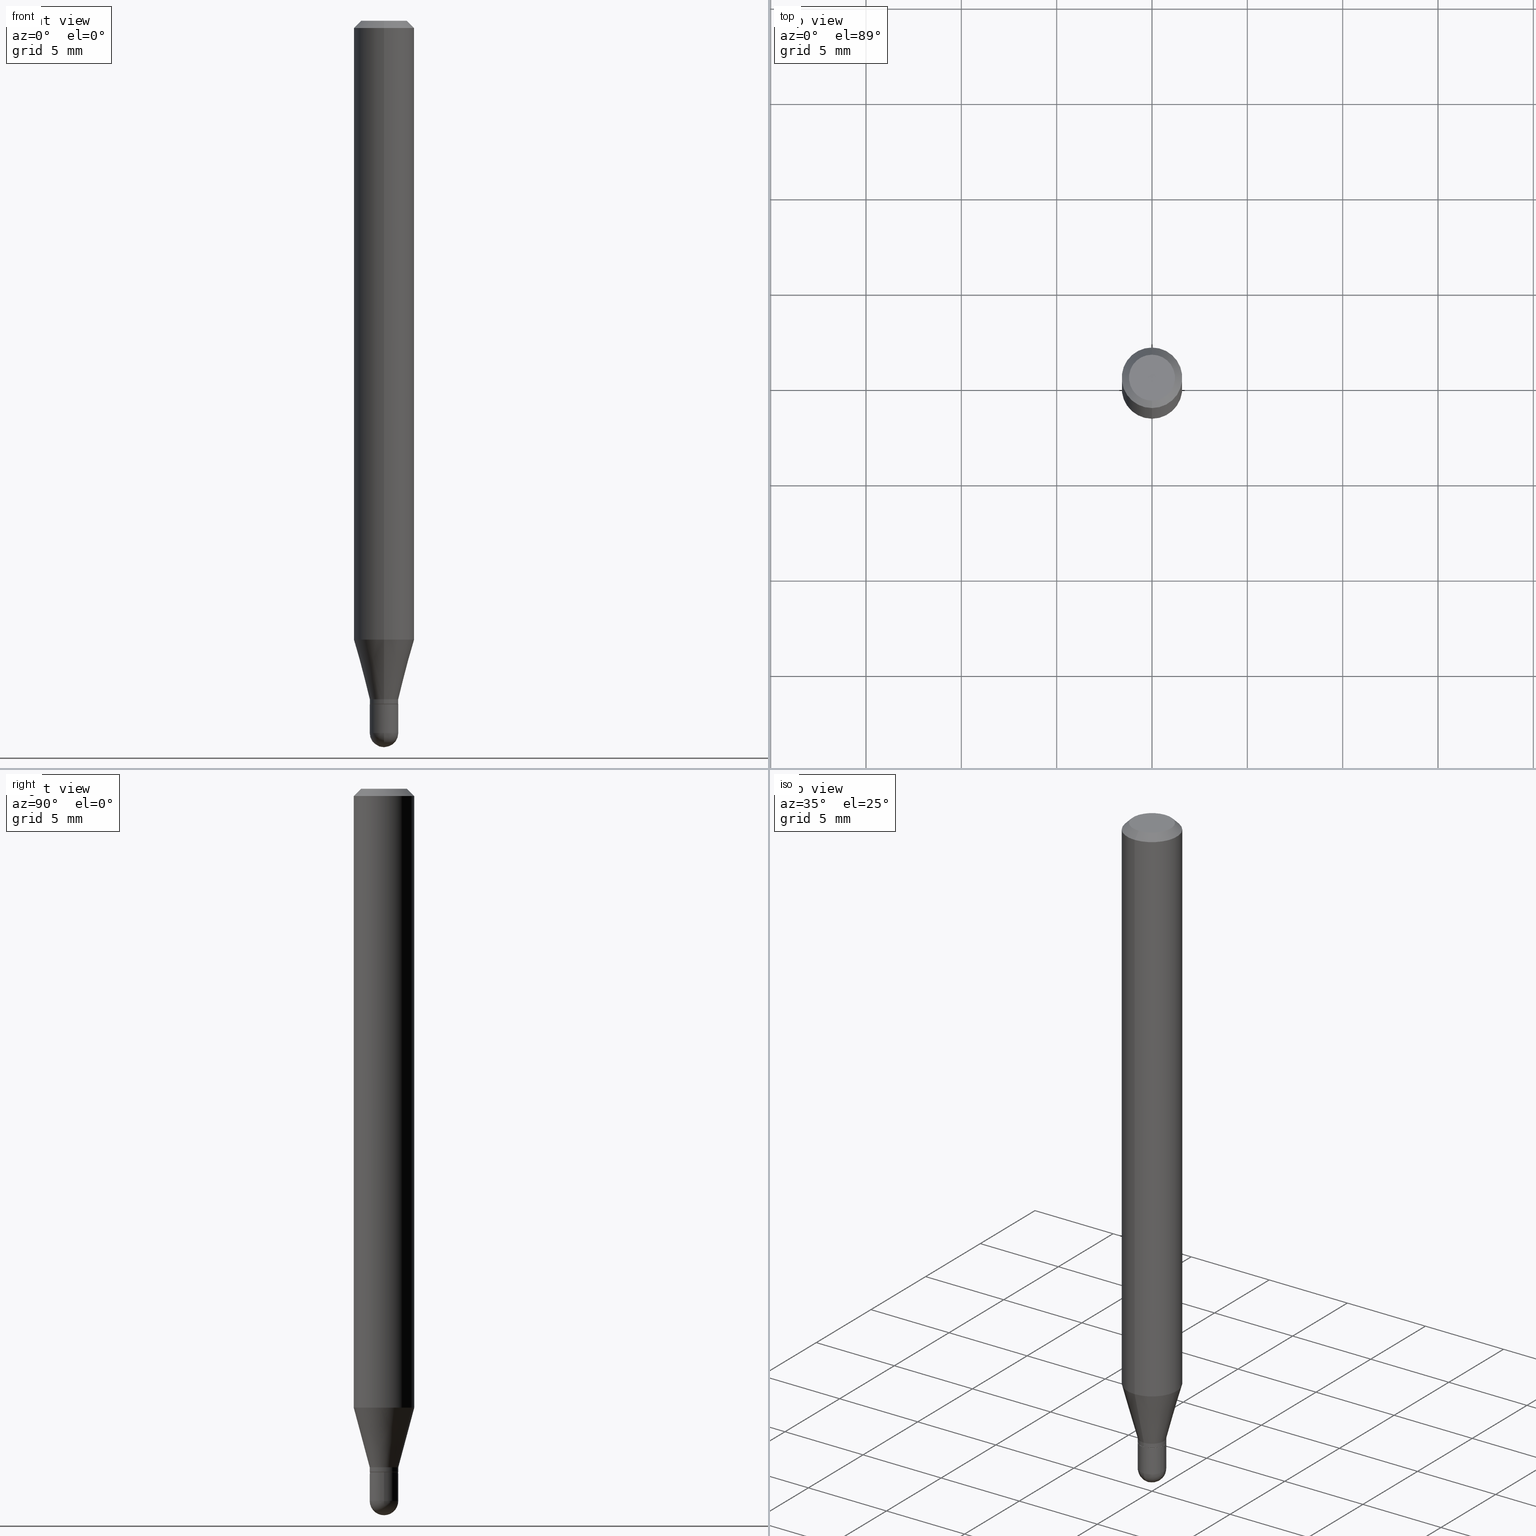
[diagram: canonical four-view strip — front | top / right | iso, engineering-drawing reading convention]
A machine part, canonical four-view strip (front | top / right | iso — engineering-drawing reading convention). The complete STEP part file that produces these views, byte-faithful:
ISO-10303-21;
HEADER;
FILE_DESCRIPTION (( 'STEP AP203' ),
    '1' );
FILE_NAME ('00723.STEP',
    '2024-03-07T18:07:25',
    ( '' ),
    ( '' ),
    'SwSTEP 2.0',
    'SolidWorks 2023',
    '' );
FILE_SCHEMA (( 'CONFIG_CONTROL_DESIGN' ));
ENDSEC;

DATA;
#1 = VERTEX_POINT ( 'NONE', #67 ) ;
#2 = EDGE_CURVE ( 'NONE', #483, #374, #115, .T. ) ;
#3 = CC_DESIGN_PERSON_AND_ORGANIZATION_ASSIGNMENT ( #64, #68, ( #231 ) ) ;
#4 = CARTESIAN_POINT ( 'NONE',  ( 4.440892098500935790E-16, 0.06249999999999551054, -1.277842323350228959 ) ) ;
#5 = EDGE_LOOP ( 'NONE', ( #18, #276, #55, #388 ) ) ;
#6 = CIRCLE ( 'NONE', #128, 0.02949999999999992212 ) ;
#7 =( GEOMETRIC_REPRESENTATION_CONTEXT ( 3 ) GLOBAL_UNCERTAINTY_ASSIGNED_CONTEXT ( ( #241 ) ) GLOBAL_UNIT_ASSIGNED_CONTEXT ( ( #370, #222, #456 ) ) REPRESENTATION_CONTEXT ( 'NONE', 'WORKASPACE' ) );
#8 = FACE_OUTER_BOUND ( 'NONE', #240, .T. ) ;
#9 = DIRECTION ( 'NONE',  ( -2.445468806185136597E-29, 3.491481338843145583E-15, 1.000000000000000000 ) ) ;
#10 = VERTEX_POINT ( 'NONE', #333 ) ;
#11 = CARTESIAN_POINT ( 'NONE',  ( -4.364351673553916201E-16, -0.06250000000000000000, 2.182174235883125981E-16 ) ) ;
#12 = LINE ( 'NONE', #77, #405 ) ;
#13 = CC_DESIGN_PERSON_AND_ORGANIZATION_ASSIGNMENT ( #200, #338, ( #228 ) ) ;
#14 = CARTESIAN_POINT ( 'NONE',  ( -2.059973989917119804E-16, -0.02950000000000509159, -1.401000000000000245 ) ) ;
#15 = CARTESIAN_POINT ( 'NONE',  ( 3.124925826572324865E-29, -4.461559352857447454E-15, -1.277842323350228737 ) ) ;
#16 = CARTESIAN_POINT ( 'NONE',  ( 3.450559009294189822E-29, -4.926476554929744998E-15, -1.411000000000000032 ) ) ;
#17 = APPROVAL_PERSON_ORGANIZATION ( #150, #263, #308 ) ;
#18 = ORIENTED_EDGE ( 'NONE', *, *, #249, .T. ) ;
#19 = CARTESIAN_POINT ( 'NONE',  ( 3.840629472727447874E-16, 0.04749999999999999362, -1.747056831868805136E-16 ) ) ;
#20 = CYLINDRICAL_SURFACE ( 'NONE', #431, 0.02950000000000006437 ) ;
#21 = FACE_OUTER_BOUND ( 'NONE', #186, .T. ) ;
#22 = EDGE_CURVE ( 'NONE', #202, #396, #174, .T. ) ;
#23 =( LENGTH_UNIT ( ) NAMED_UNIT ( * ) SI_UNIT ( $, .METRE. ) );
#24 = LINE ( 'NONE', #63, #136 ) ;
#25 = APPROVAL_STATUS ( 'not_yet_approved' ) ;
#26 = ORIENTED_EDGE ( 'NONE', *, *, #70, .T. ) ;
#27 = FACE_OUTER_BOUND ( 'NONE', #305, .T. ) ;
#28 = EDGE_CURVE ( 'NONE', #345, #294, #340, .T. ) ;
#29 = AXIS2_PLACEMENT_3D ( 'NONE', #41, #320, #393 ) ;
#30 = DIRECTION ( 'NONE',  ( -6.982962677686265133E-15, -1.000000000000000000, 3.491478777413001176E-15 ) ) ;
#31 = VECTOR ( 'NONE', #225, 39.37007874015748143 ) ;
#32 = ORIENTED_EDGE ( 'NONE', *, *, #480, .F. ) ;
#33 = DIRECTION ( 'NONE',  ( -2.445470594822246081E-29, 3.491478777413001570E-15, 1.000000000000000000 ) ) ;
#34 = ORIENTED_EDGE ( 'NONE', *, *, #166, .T. ) ;
#35 = CARTESIAN_POINT ( 'NONE',  ( 3.668205892233371399E-31, -5.237218166119505609E-17, -0.01500000000000000812 ) ) ;
#36 = EDGE_CURVE ( 'NONE', #294, #345, #90, .T. ) ;
#37 = VERTEX_POINT ( 'NONE', #261 ) ;
#38 = ORIENTED_EDGE ( 'NONE', *, *, #360, .T. ) ;
#39 = DIRECTION ( 'NONE',  ( 1.000000000000000000, -6.982962677686250144E-15, 0.000000000000000000 ) ) ;
#40 = VERTEX_POINT ( 'NONE', #301 ) ;
#41 = CARTESIAN_POINT ( 'NONE',  ( 3.426104303345967375E-29, -4.891561767155615897E-15, -1.401000000000000245 ) ) ;
#42 = CARTESIAN_POINT ( 'NONE',  ( -2.025059176528671736E-16, -0.02900000000000492462, -1.411000000000000032 ) ) ;
#43 = AXIS2_PLACEMENT_3D ( 'NONE', #291, #216, #468 ) ;
#44 = ORIENTED_EDGE ( 'NONE', *, *, #500, .F. ) ;
#45 = LINE ( 'NONE', #208, #262 ) ;
#46 = APPROVAL ( #268, 'UNSPECIFIED' ) ;
#47 = CARTESIAN_POINT ( 'NONE',  ( 0.000000000000000000, 0.000000000000000000, 0.000000000000000000 ) ) ;
#48 = DIRECTION ( 'NONE',  ( -2.445470594822246362E-29, 3.491478777413001965E-15, 1.000000000000000000 ) ) ;
#49 = DIRECTION ( 'NONE',  ( -2.445470594822246081E-29, 3.491478777413001570E-15, 1.000000000000000000 ) ) ;
#50 = CARTESIAN_POINT ( 'NONE',  ( 3.668205892233371399E-31, -5.237218166119505609E-17, -0.01500000000000000812 ) ) ;
#51 = ADVANCED_FACE ( 'NONE', ( #295 ), #303, .T. ) ;
#52 = AXIS2_PLACEMENT_3D ( 'NONE', #69, #226, #201 ) ;
#53 = ORGANIZATION ( 'UNSPECIFIED', 'UNSPECIFIED', '' ) ;
#54 = DIRECTION ( 'NONE',  ( -2.445470594822246081E-29, 3.491478777413001570E-15, 1.000000000000000000 ) ) ;
#55 = ORIENTED_EDGE ( 'NONE', *, *, #36, .F. ) ;
#56 = DIRECTION ( 'NONE',  ( -6.982962677686265922E-15, -1.000000000000000000, 3.491478777413001570E-15 ) ) ;
#57 = ORIENTED_EDGE ( 'NONE', *, *, #197, .F. ) ;
#58 = CARTESIAN_POINT ( 'NONE',  ( 3.426104303345967375E-29, -4.891561767155615897E-15, -1.401000000000000245 ) ) ;
#59 = CARTESIAN_POINT ( 'NONE',  ( 3.450559009294189822E-29, -4.926476554929744998E-15, -1.411000000000000032 ) ) ;
#60 = ADVANCED_BREP_SHAPE_REPRESENTATION ( '00723', ( #146, #321, #351 ), #7 ) ;
#61 = AXIS2_PLACEMENT_3D ( 'NONE', #379, #195, #152 ) ;
#62 = ADVANCED_FACE ( 'NONE', ( #461 ), #148, .F. ) ;
#63 = CARTESIAN_POINT ( 'NONE',  ( 0.02950000000000000192, -2.059973989917448660E-16, 1.438472148859801150E-30 ) ) ;
#64 = PERSON_AND_ORGANIZATION ( #420, #53 ) ;
#65 = FACE_OUTER_BOUND ( 'NONE', #165, .T. ) ;
#66 = LINE ( 'NONE', #72, #253 ) ;
#67 = CARTESIAN_POINT ( 'NONE',  ( -0.02950000000000000192, -4.820741631889032374E-15, -1.470500000000000140 ) ) ;
#68 = PERSON_AND_ORGANIZATION_ROLE ( 'creator' ) ;
#69 = CARTESIAN_POINT ( 'NONE',  ( 3.450559009294189822E-29, -4.926476554929744998E-15, -1.411000000000000032 ) ) ;
#70 = EDGE_CURVE ( 'NONE', #483, #40, #358, .T. ) ;
#71 = AXIS2_PLACEMENT_3D ( 'NONE', #103, #403, #113 ) ;
#72 = CARTESIAN_POINT ( 'NONE',  ( -2.059973989917452604E-16, -0.02950000000000006437, 1.029986239336837582E-16 ) ) ;
#73 = CONICAL_SURFACE ( 'NONE', #411, 0.02950000000000019967, 0.2617993877991511287 ) ;
#74 = PERSON_AND_ORGANIZATION ( #420, #53 ) ;
#75 = CARTESIAN_POINT ( 'NONE',  ( 0.02950000000000000192, -5.236349137930006242E-15, -1.470500000000000140 ) ) ;
#76 = DIRECTION ( 'NONE',  ( -6.982962677686265922E-15, -1.000000000000000000, 3.491478777413001965E-15 ) ) ;
#77 = CARTESIAN_POINT ( 'NONE',  ( 2.096101070492299629E-16, 0.02950000000000006437, -1.029986239336837582E-16 ) ) ;
#78 = CYLINDRICAL_SURFACE ( 'NONE', #71, 0.02950000000000000192 ) ;
#79 = CARTESIAN_POINT ( 'NONE',  ( -2.025059176528671736E-16, -0.02900000000000492462, -1.411000000000000032 ) ) ;
#80 = COORDINATED_UNIVERSAL_TIME_OFFSET ( 5, 0, .BEHIND. ) ;
#81 = CARTESIAN_POINT ( 'NONE',  ( 0.000000000000000000, 0.000000000000000000, 0.000000000000000000 ) ) ;
#82 = DIRECTION ( 'NONE',  ( -2.445470594822246081E-29, 3.491478777413001570E-15, 1.000000000000000000 ) ) ;
#83 = COORDINATED_UNIVERSAL_TIME_OFFSET ( 5, 0, .BEHIND. ) ;
#84 = DIRECTION ( 'NONE',  ( 2.445470594822245801E-29, -3.491478777413001965E-15, -1.000000000000000000 ) ) ;
#85 = DIRECTION ( 'NONE',  ( -6.982962677686265922E-15, -1.000000000000000000, 3.491478777413001570E-15 ) ) ;
#86 = CARTESIAN_POINT ( 'NONE',  ( 3.124925826572324865E-29, -4.461559352857447454E-15, -1.277842323350228737 ) ) ;
#87 = VECTOR ( 'NONE', #179, 39.37007874015748143 ) ;
#88 = LOCAL_TIME ( 13, 7, 25.00000000000000000, #80 ) ;
#89 = ADVANCED_FACE ( 'NONE', ( #123 ), #20, .T. ) ;
#90 = CIRCLE ( 'NONE', #489, 0.06250000000000000000 ) ;
#91 = ORIENTED_EDGE ( 'NONE', *, *, #249, .F. ) ;
#92 = ORIENTED_EDGE ( 'NONE', *, *, #304, .F. ) ;
#93 = CARTESIAN_POINT ( 'NONE',  ( 3.596061879495243621E-29, -5.134223308768845522E-15, -1.470500000000000140 ) ) ;
#94 = ADVANCED_FACE ( 'NONE', ( #65 ), #371, .F. ) ;
#95 = AXIS2_PLACEMENT_3D ( 'NONE', #298, #224, #144 ) ;
#96 = LINE ( 'NONE', #11, #385 ) ;
#97 = DIRECTION ( 'NONE',  ( -2.445468806185136597E-29, 3.491481338843145583E-15, 1.000000000000000000 ) ) ;
#98 = CARTESIAN_POINT ( 'NONE',  ( 3.426104303345967375E-29, -4.891561767155615897E-15, -1.401000000000000245 ) ) ;
#99 = CARTESIAN_POINT ( 'NONE',  ( -0.02950000000000000192, 2.096101070492295684E-16, -1.451085851625197342E-30 ) ) ;
#100 = ORIENTED_EDGE ( 'NONE', *, *, #28, .F. ) ;
#101 = CIRCLE ( 'NONE', #323, 0.02950000000000000192 ) ;
#102 = LINE ( 'NONE', #401, #481 ) ;
#103 = CARTESIAN_POINT ( 'NONE',  ( 0.000000000000000000, 0.000000000000000000, 0.000000000000000000 ) ) ;
#104 = EDGE_CURVE ( 'NONE', #508, #485, #269, .T. ) ;
#105 = DIRECTION ( 'NONE',  ( -6.982962677686265922E-15, -1.000000000000000000, 0.000000000000000000 ) ) ;
#106 = DIMENSIONAL_EXPONENTS ( 1.000000000000000000, 0.000000000000000000, 0.000000000000000000, 0.000000000000000000, 0.000000000000000000, 0.000000000000000000, 0.000000000000000000 ) ;
#107 = AXIS2_PLACEMENT_3D ( 'NONE', #285, #465, #203 ) ;
#108 = LOCAL_TIME ( 13, 7, 25.00000000000000000, #472 ) ;
#109 = DIRECTION ( 'NONE',  ( -6.982962677686265133E-15, -1.000000000000000000, 0.000000000000000000 ) ) ;
#110 = COORDINATED_UNIVERSAL_TIME_OFFSET ( 5, 0, .BEHIND. ) ;
#111 = DIRECTION ( 'NONE',  ( -2.445470594822246081E-29, 3.491478777413001570E-15, 1.000000000000000000 ) ) ;
#112 = DIRECTION ( 'NONE',  ( 2.438088387897960049E-29, -3.491481338843145188E-15, -1.000000000000000000 ) ) ;
#113 = DIRECTION ( 'NONE',  ( 1.000000000000000000, -6.982962677686265922E-15, 4.876176775795935793E-29 ) ) ;
#114 = DIRECTION ( 'NONE',  ( 6.982962677686265922E-15, 1.000000000000000000, 0.000000000000000000 ) ) ;
#115 = LINE ( 'NONE', #42, #31 ) ;
#116 = APPROVAL_STATUS ( 'not_yet_approved' ) ;
#117 = APPLICATION_CONTEXT ( 'configuration controlled 3d designs of mechanical parts and assemblies' ) ;
#118 = AXIS2_PLACEMENT_3D ( 'NONE', #415, #82, #233 ) ;
#119 = PERSON_AND_ORGANIZATION_ROLE ( 'creator' ) ;
#120 = LINE ( 'NONE', #339, #279 ) ;
#121 = EDGE_CURVE ( 'NONE', #40, #467, #120, .T. ) ;
#122 = LENGTH_MEASURE_WITH_UNIT ( LENGTH_MEASURE( 0.02539999999999999897 ), #23 );
#123 = FACE_OUTER_BOUND ( 'NONE', #349, .T. ) ;
#124 = EDGE_CURVE ( 'NONE', #467, #374, #6, .T. ) ;
#125 = ORIENTED_EDGE ( 'NONE', *, *, #488, .T. ) ;
#126 = CYLINDRICAL_SURFACE ( 'NONE', #432, 0.06250000000000000000 ) ;
#127 = ORIENTED_EDGE ( 'NONE', *, *, #2, .F. ) ;
#128 = AXIS2_PLACEMENT_3D ( 'NONE', #290, #54, #105 ) ;
#129 = LOCAL_TIME ( 13, 7, 25.00000000000000000, #110 ) ;
#130 = DIRECTION ( 'NONE',  ( -2.445470594822246081E-29, 3.491478777413001570E-15, 1.000000000000000000 ) ) ;
#131 = SHAPE_DEFINITION_REPRESENTATION ( #510, #60 ) ;
#132 = EDGE_CURVE ( 'NONE', #396, #202, #315, .T. ) ;
#133 = CARTESIAN_POINT ( 'NONE',  ( 0.000000000000000000, 0.000000000000000000, 0.000000000000000000 ) ) ;
#134 = ORIENTED_EDGE ( 'NONE', *, *, #335, .F. ) ;
#135 = VECTOR ( 'NONE', #154, 39.37007874015748143 ) ;
#136 = VECTOR ( 'NONE', #453, 39.37007874015748143 ) ;
#137 = DIRECTION ( 'NONE',  ( -2.445470594822246081E-29, 3.491478777413001570E-15, 1.000000000000000000 ) ) ;
#138 = EDGE_CURVE ( 'NONE', #475, #294, #368, .T. ) ;
#139 = CARTESIAN_POINT ( 'NONE',  ( -0.02949999999999999845, -4.820741631889032374E-15, -1.411000000000000032 ) ) ;
#140 = ORIENTED_EDGE ( 'NONE', *, *, #141, .F. ) ;
#141 = EDGE_CURVE ( 'NONE', #37, #275, #102, .T. ) ;
#142 = AXIS2_PLACEMENT_3D ( 'NONE', #98, #357, #176 ) ;
#143 = DIRECTION ( 'NONE',  ( -6.982962677686265922E-15, -1.000000000000000000, 3.483106191921935554E-15 ) ) ;
#144 = DIRECTION ( 'NONE',  ( 6.982962677686266711E-15, 1.000000000000000000, 0.000000000000000000 ) ) ;
#145 = FACE_OUTER_BOUND ( 'NONE', #274, .T. ) ;
#146 = MANIFOLD_SOLID_BREP ( 'Body-Move/Copy2[1]', #255 ) ;
#147 = DIRECTION ( 'NONE',  ( 1.000000000000000000, -6.982962677686265922E-15, 4.883557194083112340E-29 ) ) ;
#148 = PLANE ( 'NONE',  #272 ) ;
#149 = FACE_OUTER_BOUND ( 'NONE', #312, .T. ) ;
#150 = PERSON_AND_ORGANIZATION ( #420, #53 ) ;
#151 = ORIENTED_EDGE ( 'NONE', *, *, #156, .F. ) ;
#152 = DIRECTION ( 'NONE',  ( -6.982962677686266711E-15, -1.000000000000000000, 3.491478777413001965E-15 ) ) ;
#153 = ORIENTED_EDGE ( 'NONE', *, *, #104, .T. ) ;
#154 = DIRECTION ( 'NONE',  ( 4.937700262164548042E-15, 0.7071067811865451302, -0.7071067811865499042 ) ) ;
#155 = DIRECTION ( 'NONE',  ( -7.105427357601000281E-15, -1.000000000000000000, 0.000000000000000000 ) ) ;
#156 = EDGE_CURVE ( 'NONE', #400, #345, #219, .T. ) ;
#157 = ORIENTED_EDGE ( 'NONE', *, *, #247, .F. ) ;
#158 = SPHERICAL_SURFACE ( 'NONE', #306, 0.02950000000000002967 ) ;
#159 = APPROVAL_DATE_TIME ( #196, #263 ) ;
#160 = ORIENTED_EDGE ( 'NONE', *, *, #425, .F. ) ;
#161 = ORIENTED_EDGE ( 'NONE', *, *, #132, .F. ) ;
#162 = CALENDAR_DATE ( 2024, 7, 3 ) ;
#163 = ORIENTED_EDGE ( 'NONE', *, *, #257, .T. ) ;
#164 = EDGE_CURVE ( 'NONE', #374, #475, #66, .T. ) ;
#165 = EDGE_LOOP ( 'NONE', ( #277, #443 ) ) ;
#166 = EDGE_CURVE ( 'NONE', #10, #1, #101, .T. ) ;
#167 = LOCAL_TIME ( 13, 7, 25.00000000000000000, #83 ) ;
#168 = FACE_OUTER_BOUND ( 'NONE', #389, .T. ) ;
#169 = ORIENTED_EDGE ( 'NONE', *, *, #278, .T. ) ;
#170 = CARTESIAN_POINT ( 'NONE',  ( 3.596061879495243621E-29, -5.134223308768845522E-15, -1.470500000000000140 ) ) ;
#171 = CIRCLE ( 'NONE', #248, 0.02950000000000002967 ) ;
#172 = DIRECTION ( 'NONE',  ( -2.445470594822246081E-29, 3.491478777413001570E-15, 1.000000000000000000 ) ) ;
#173 = DIRECTION ( 'NONE',  ( -6.982962677686265922E-15, -1.000000000000000000, 0.000000000000000000 ) ) ;
#174 = CIRCLE ( 'NONE', #246, 0.02949999999999999845 ) ;
#175 = CC_DESIGN_DATE_AND_TIME_ASSIGNMENT ( #194, #381, ( #231 ) ) ;
#176 = DIRECTION ( 'NONE',  ( -6.982962677686265922E-15, -1.000000000000000000, 0.000000000000000000 ) ) ;
#177 = DIRECTION ( 'NONE',  ( -1.000000000000000000, 7.105427357601001070E-15, -4.926315508542082329E-29 ) ) ;
#178 = FACE_OUTER_BOUND ( 'NONE', #426, .T. ) ;
#179 = DIRECTION ( 'NONE',  ( -1.807323732225336056E-15, -0.2588190451025190186, 0.9659258262890687563 ) ) ;
#180 = ORIENTED_EDGE ( 'NONE', *, *, #132, .T. ) ;
#181 = CARTESIAN_POINT ( 'NONE',  ( 3.596061879495243621E-29, -5.134223308768845522E-15, -1.470500000000000140 ) ) ;
#182 = CARTESIAN_POINT ( 'NONE',  ( 2.096101070492652151E-16, 0.02949999999999530775, -1.401000000000000245 ) ) ;
#183 = CC_DESIGN_DATE_AND_TIME_ASSIGNMENT ( #300, #192, ( #228 ) ) ;
#184 = AXIS2_PLACEMENT_3D ( 'NONE', #170, #435, #209 ) ;
#185 = VERTEX_POINT ( 'NONE', #75 ) ;
#186 = EDGE_LOOP ( 'NONE', ( #239, #251, #236, #449, #422 ) ) ;
#187 = DIRECTION ( 'NONE',  ( -2.445470594822246081E-29, 3.491478777413001570E-15, 1.000000000000000000 ) ) ;
#188 = DIRECTION ( 'NONE',  ( -2.445470594822245801E-29, 3.491478777413001965E-15, 1.000000000000000000 ) ) ;
#189 = CLOSED_SHELL ( 'NONE', ( #51, #223, #302, #292, #280, #455, #365, #198, #62, #94, #355, #89 ) ) ;
#190 = CIRCLE ( 'NONE', #29, 0.02950000000000019967 ) ;
#191 = DIRECTION ( 'NONE',  ( -6.982962677686265922E-15, -1.000000000000000000, 4.370956789862821150E-15 ) ) ;
#192 = DATE_TIME_ROLE ( 'classification_date' ) ;
#193 = DIRECTION ( 'NONE',  ( -6.982962677686265922E-15, -1.000000000000000000, 4.370956789862821150E-15 ) ) ;
#194 = DATE_AND_TIME ( #491, #129 ) ;
#195 = DIRECTION ( 'NONE',  ( -2.445470594822246081E-29, 3.491478777413001570E-15, 1.000000000000000000 ) ) ;
#196 = DATE_AND_TIME ( #234, #167 ) ;
#197 = EDGE_CURVE ( 'NONE', #37, #508, #356, .T. ) ;
#198 = ADVANCED_FACE ( 'NONE', ( #245 ), #439, .T. ) ;
#199 = AXIS2_PLACEMENT_3D ( 'NONE', #258, #384, #30 ) ;
#200 = PERSON_AND_ORGANIZATION ( #420, #53 ) ;
#201 = DIRECTION ( 'NONE',  ( -6.982962677686265133E-15, -1.000000000000000000, 0.000000000000000000 ) ) ;
#202 = VERTEX_POINT ( 'NONE', #139 ) ;
#203 = DIRECTION ( 'NONE',  ( -6.982962677686265133E-15, -1.000000000000000000, 0.000000000000000000 ) ) ;
#204 = ORIENTED_EDGE ( 'NONE', *, *, #313, .F. ) ;
#205 = ORIENTED_EDGE ( 'NONE', *, *, #166, .F. ) ;
#206 = CARTESIAN_POINT ( 'NONE',  ( 3.450556485527227711E-29, -4.926480169107677920E-15, -1.411000000000000032 ) ) ;
#207 = ORIENTED_EDGE ( 'NONE', *, *, #442, .F. ) ;
#208 = CARTESIAN_POINT ( 'NONE',  ( 4.440892098500625669E-16, 0.06250000000000000000, -2.182174235883125981E-16 ) ) ;
#209 = DIRECTION ( 'NONE',  ( 1.000000000000000000, -6.982962677686250144E-15, 0.000000000000000000 ) ) ;
#210 = CARTESIAN_POINT ( 'NONE',  ( -4.364351673553912750E-16, -0.06250000000000005551, -0.01499999999999979128 ) ) ;
#211 = DIRECTION ( 'NONE',  ( -6.982962677686265922E-15, -1.000000000000000000, 0.000000000000000000 ) ) ;
#212 = DIRECTION ( 'NONE',  ( 2.445470594822246081E-29, -3.491478777413001570E-15, -1.000000000000000000 ) ) ;
#213 = CC_DESIGN_PERSON_AND_ORGANIZATION_ASSIGNMENT ( #344, #383, ( #399 ) ) ;
#214 = ADVANCED_FACE ( 'NONE', ( #283 ), #436, .T. ) ;
#215 = AXIS2_PLACEMENT_3D ( 'NONE', #476, #137, #284 ) ;
#216 = DIRECTION ( 'NONE',  ( 2.445470594822246081E-29, -3.491478777413001570E-15, -1.000000000000000000 ) ) ;
#217 = EDGE_CURVE ( 'NONE', #317, #10, #375, .T. ) ;
#218 = CARTESIAN_POINT ( 'NONE',  ( 3.450559009294189822E-29, -4.926476554929744998E-15, -1.411000000000000032 ) ) ;
#219 = LINE ( 'NONE', #182, #398 ) ;
#220 = FACE_OUTER_BOUND ( 'NONE', #311, .T. ) ;
#221 = DIRECTION ( 'NONE',  ( 1.000000000000000000, -6.982962677686250933E-15, 0.000000000000000000 ) ) ;
#222 =( NAMED_UNIT ( * ) PLANE_ANGLE_UNIT ( ) SI_UNIT ( $, .RADIAN. ) );
#223 = ADVANCED_FACE ( 'NONE', ( #149 ), #343, .T. ) ;
#224 = DIRECTION ( 'NONE',  ( -1.000000000000000000, 6.982962677686266711E-15, -4.883557194083112340E-29 ) ) ;
#225 = DIRECTION ( 'NONE',  ( -4.937700262164674260E-15, -0.7071067811865632269, 0.7071067811865319186 ) ) ;
#226 = DIRECTION ( 'NONE',  ( -2.445470594822246081E-29, 3.491478777413001570E-15, 1.000000000000000000 ) ) ;
#227 = AXIS2_PLACEMENT_3D ( 'NONE', #47, #322, #458 ) ;
#228 = SECURITY_CLASSIFICATION ( '', '', #265 ) ;
#229 = CALENDAR_DATE ( 2024, 7, 3 ) ;
#230 = CARTESIAN_POINT ( 'NONE',  ( 4.364351673553919652E-16, 0.06249999999999995143, -0.01500000000000022669 ) ) ;
#231 = PRODUCT_DEFINITION ( 'UNKNOWN', '', #399, #429 ) ;
#232 = CARTESIAN_POINT ( 'NONE',  ( 0.000000000000000000, 0.000000000000000000, 0.000000000000000000 ) ) ;
#233 = DIRECTION ( 'NONE',  ( -6.982962677686265922E-15, -1.000000000000000000, 0.000000000000000000 ) ) ;
#234 = CALENDAR_DATE ( 2024, 7, 3 ) ;
#235 = AXIS2_PLACEMENT_3D ( 'NONE', #35, #172, #428 ) ;
#236 = ORIENTED_EDGE ( 'NONE', *, *, #442, .T. ) ;
#237 = DIRECTION ( 'NONE',  ( -2.445468806185136597E-29, 3.491481338843145583E-15, 1.000000000000000000 ) ) ;
#238 = VERTEX_POINT ( 'NONE', #299 ) ;
#239 = ORIENTED_EDGE ( 'NONE', *, *, #257, .F. ) ;
#240 = EDGE_LOOP ( 'NONE', ( #271, #386, #430, #270 ) ) ;
#241 = UNCERTAINTY_MEASURE_WITH_UNIT (LENGTH_MEASURE( 1.000000000000000082E-05 ), #370, 'distance_accuracy_value', 'NONE');
#242 = AXIS2_PLACEMENT_3D ( 'NONE', #181, #445, #252 ) ;
#243 = DIRECTION ( 'NONE',  ( -2.445470594822246081E-29, 3.491478777413001570E-15, 1.000000000000000000 ) ) ;
#244 = ADVANCED_FACE ( 'NONE', ( #220 ), #486, .F. ) ;
#245 = FACE_OUTER_BOUND ( 'NONE', #362, .T. ) ;
#246 = AXIS2_PLACEMENT_3D ( 'NONE', #206, #336, #369 ) ;
#247 = EDGE_CURVE ( 'NONE', #1, #238, #341, .T. ) ;
#248 = AXIS2_PLACEMENT_3D ( 'NONE', #359, #177, #155 ) ;
#249 = EDGE_CURVE ( 'NONE', #475, #400, #502, .T. ) ;
#250 = ORIENTED_EDGE ( 'NONE', *, *, #124, .T. ) ;
#251 = ORIENTED_EDGE ( 'NONE', *, *, #247, .T. ) ;
#252 = DIRECTION ( 'NONE',  ( 1.000000000000000000, -6.982962677686250144E-15, 0.000000000000000000 ) ) ;
#253 = VECTOR ( 'NONE', #417, 39.37007874015748143 ) ;
#254 = CARTESIAN_POINT ( 'NONE',  ( -2.059973989917104766E-16, -0.02950000000000494588, -1.410500000000000087 ) ) ;
#255 = CLOSED_SHELL ( 'NONE', ( #214, #397, #244, #464, #466 ) ) ;
#256 = CARTESIAN_POINT ( 'NONE',  ( 3.450556485527227711E-29, -4.926480169107677920E-15, -1.411000000000000032 ) ) ;
#257 = EDGE_CURVE ( 'NONE', #1, #202, #440, .T. ) ;
#258 = CARTESIAN_POINT ( 'NONE',  ( 0.000000000000000000, 0.000000000000000000, 0.000000000000000000 ) ) ;
#259 = CARTESIAN_POINT ( 'NONE',  ( 4.440892098500940720E-16, 0.06249999999999995143, -0.01500000000000022669 ) ) ;
#260 = DATE_AND_TIME ( #229, #88 ) ;
#261 = CARTESIAN_POINT ( 'NONE',  ( -3.773273898774340269E-16, -0.04749999999999999362, 1.569848006673546198E-16 ) ) ;
#262 = VECTOR ( 'NONE', #48, 39.37007874015748143 ) ;
#263 = APPROVAL ( #25, 'UNSPECIFIED' ) ;
#264 = APPROVAL_PERSON_ORGANIZATION ( #494, #416, #273 ) ;
#265 = SECURITY_CLASSIFICATION_LEVEL ( 'unclassified' ) ;
#266 = DIRECTION ( 'NONE',  ( 5.024295867788190974E-15, 0.7071067811865681119, 0.7071067811865270336 ) ) ;
#267 = DIRECTION ( 'NONE',  ( 1.839019923739606232E-15, 0.2588190451025257910, 0.9659258262890669799 ) ) ;
#268 = APPROVAL_STATUS ( 'not_yet_approved' ) ;
#269 = LINE ( 'NONE', #230, #135 ) ;
#270 = ORIENTED_EDGE ( 'NONE', *, *, #124, .F. ) ;
#271 = ORIENTED_EDGE ( 'NONE', *, *, #121, .F. ) ;
#272 = AXIS2_PLACEMENT_3D ( 'NONE', #414, #84, #492 ) ;
#273 = APPROVAL_ROLE ( '' ) ;
#274 = EDGE_LOOP ( 'NONE', ( #57, #347, #391, #394 ) ) ;
#275 = VERTEX_POINT ( 'NONE', #210 ) ;
#276 = ORIENTED_EDGE ( 'NONE', *, *, #156, .T. ) ;
#277 = ORIENTED_EDGE ( 'NONE', *, *, #70, .F. ) ;
#278 = EDGE_CURVE ( 'NONE', #485, #275, #281, .T. ) ;
#279 = VECTOR ( 'NONE', #266, 39.37007874015748143 ) ;
#280 = ADVANCED_FACE ( 'NONE', ( #289 ), #73, .T. ) ;
#281 = CIRCLE ( 'NONE', #479, 0.06250000000000000000 ) ;
#282 = AXIS2_PLACEMENT_3D ( 'NONE', #454, #112, #363 ) ;
#283 = FACE_OUTER_BOUND ( 'NONE', #319, .T. ) ;
#284 = DIRECTION ( 'NONE',  ( -6.982962677686266711E-15, -1.000000000000000000, 3.491478777413001965E-15 ) ) ;
#285 = CARTESIAN_POINT ( 'NONE',  ( 3.450559009294189822E-29, -4.926476554929744998E-15, -1.411000000000000032 ) ) ;
#286 = AXIS2_PLACEMENT_3D ( 'NONE', #367, #147, #114 ) ;
#287 = CIRCLE ( 'NONE', #352, 0.02899999999999999800 ) ;
#288 = LOCAL_TIME ( 13, 7, 25.00000000000000000, #452 ) ;
#289 = FACE_OUTER_BOUND ( 'NONE', #5, .T. ) ;
#290 = CARTESIAN_POINT ( 'NONE',  ( 3.449336273996778251E-29, -4.924730815541040752E-15, -1.410500000000000087 ) ) ;
#291 = CARTESIAN_POINT ( 'NONE',  ( 3.668205892233371399E-31, -5.237218166119505609E-17, -0.01500000000000000812 ) ) ;
#292 = ADVANCED_FACE ( 'NONE', ( #168 ), #474, .T. ) ;
#293 = CARTESIAN_POINT ( 'NONE',  ( 3.668205892233371399E-31, -5.237218166119505609E-17, -0.01500000000000000812 ) ) ;
#294 = VERTEX_POINT ( 'NONE', #437 ) ;
#295 = FACE_OUTER_BOUND ( 'NONE', #511, .T. ) ;
#296 = APPROVAL_PERSON_ORGANIZATION ( #74, #46, #337 ) ;
#297 = CARTESIAN_POINT ( 'NONE',  ( 2.096101070492627499E-16, 0.02949999999999489836, -1.410500000000000087 ) ) ;
#298 = CARTESIAN_POINT ( 'NONE',  ( 3.593539138942164173E-29, -5.137836016826330348E-15, -1.470500000000000140 ) ) ;
#299 = CARTESIAN_POINT ( 'NONE',  ( -2.096101070491936753E-16, -0.02950000000000515057, -1.470500000000000140 ) ) ;
#300 = DATE_AND_TIME ( #503, #288 ) ;
#301 = CARTESIAN_POINT ( 'NONE',  ( 2.078337502098634593E-16, 0.02899999999999507139, -1.411000000000000032 ) ) ;
#302 = ADVANCED_FACE ( 'NONE', ( #145 ), #421, .T. ) ;
#303 = CYLINDRICAL_SURFACE ( 'NONE', #199, 0.02950000000000006437 ) ;
#304 = EDGE_CURVE ( 'NONE', #185, #10, #512, .T. ) ;
#305 = EDGE_LOOP ( 'NONE', ( #134, #314, #332, #350 ) ) ;
#306 = AXIS2_PLACEMENT_3D ( 'NONE', #408, #497, #373 ) ;
#307 = SPHERICAL_SURFACE ( 'NONE', #95, 0.02950000000000002967 ) ;
#308 = APPROVAL_ROLE ( '' ) ;
#309 = ORIENTED_EDGE ( 'NONE', *, *, #335, .T. ) ;
#310 = APPROVAL_DATE_TIME ( #434, #416 ) ;
#311 = EDGE_LOOP ( 'NONE', ( #180, #477 ) ) ;
#312 = EDGE_LOOP ( 'NONE', ( #26, #409, #390, #127 ) ) ;
#313 = EDGE_CURVE ( 'NONE', #400, #475, #190, .T. ) ;
#314 = ORIENTED_EDGE ( 'NONE', *, *, #28, .T. ) ;
#315 = CIRCLE ( 'NONE', #478, 0.02949999999999999845 ) ;
#316 = AXIS2_PLACEMENT_3D ( 'NONE', #93, #237, #39 ) ;
#317 = VERTEX_POINT ( 'NONE', #433 ) ;
#318 = ORIENTED_EDGE ( 'NONE', *, *, #488, .F. ) ;
#319 = EDGE_LOOP ( 'NONE', ( #34, #163, #161, #160, #413 ) ) ;
#320 = DIRECTION ( 'NONE',  ( -2.445470594822246081E-29, 3.491478777413001570E-15, 1.000000000000000000 ) ) ;
#321 = MANIFOLD_SOLID_BREP ( 'Body-Move/Copy2[2]', #189 ) ;
#322 = DIRECTION ( 'NONE',  ( -2.445468806185136597E-29, 3.491481338843145583E-15, 1.000000000000000000 ) ) ;
#323 = AXIS2_PLACEMENT_3D ( 'NONE', #342, #97, #419 ) ;
#324 = CONICAL_SURFACE ( 'NONE', #107, 0.02899999999999999800, 0.7853981633974739252 ) ;
#325 = DIRECTION ( 'NONE',  ( 6.982962677686265922E-15, 1.000000000000000000, -3.483106191921935554E-15 ) ) ;
#326 = ORIENTED_EDGE ( 'NONE', *, *, #36, .T. ) ;
#327 = DIRECTION ( 'NONE',  ( -2.445470594822246081E-29, 3.491478777413001570E-15, 1.000000000000000000 ) ) ;
#328 = CIRCLE ( 'NONE', #118, 0.02949999999999992212 ) ;
#329 = PRODUCT_RELATED_PRODUCT_CATEGORY ( 'detail', '', ( #471 ) ) ;
#330 = DIRECTION ( 'NONE',  ( -2.445470594822246081E-29, 3.491478777413001570E-15, 1.000000000000000000 ) ) ;
#331 = CARTESIAN_POINT ( 'NONE',  ( 3.268496584496795573E-16, 0.02949999999999530775, -1.401000000000000245 ) ) ;
#332 = ORIENTED_EDGE ( 'NONE', *, *, #482, .T. ) ;
#333 = CARTESIAN_POINT ( 'NONE',  ( 2.059973989917809071E-16, 0.02949999999999488101, -1.470500000000000140 ) ) ;
#334 = CC_DESIGN_APPROVAL ( #46, ( #231 ) ) ;
#335 = EDGE_CURVE ( 'NONE', #345, #485, #45, .T. ) ;
#336 = DIRECTION ( 'NONE',  ( -2.445468806185136597E-29, 3.491481338843145583E-15, 1.000000000000000000 ) ) ;
#337 = APPROVAL_ROLE ( '' ) ;
#338 = PERSON_AND_ORGANIZATION_ROLE ( 'classification_officer' ) ;
#339 = CARTESIAN_POINT ( 'NONE',  ( 2.060573933704635277E-16, 0.02899999999999507139, -1.411000000000000032 ) ) ;
#340 = CIRCLE ( 'NONE', #469, 0.06250000000000000000 ) ;
#341 = CIRCLE ( 'NONE', #242, 0.02950000000000000192 ) ;
#342 = CARTESIAN_POINT ( 'NONE',  ( 3.596061879495243621E-29, -5.134223308768845522E-15, -1.470500000000000140 ) ) ;
#343 = CONICAL_SURFACE ( 'NONE', #406, 0.02899999999999999800, 0.7853981633974739252 ) ;
#344 = PERSON_AND_ORGANIZATION ( #420, #53 ) ;
#345 = VERTEX_POINT ( 'NONE', #4 ) ;
#346 = ORIENTED_EDGE ( 'NONE', *, *, #500, .T. ) ;
#347 = ORIENTED_EDGE ( 'NONE', *, *, #141, .T. ) ;
#348 = ORIENTED_EDGE ( 'NONE', *, *, #480, .T. ) ;
#349 = EDGE_LOOP ( 'NONE', ( #32, #250, #382, #204 ) ) ;
#350 = ORIENTED_EDGE ( 'NONE', *, *, #278, .F. ) ;
#351 = AXIS2_PLACEMENT_3D ( 'NONE', #232, #412, #463 ) ;
#352 = AXIS2_PLACEMENT_3D ( 'NONE', #59, #330, #487 ) ;
#353 = ORIENTED_EDGE ( 'NONE', *, *, #197, .T. ) ;
#354 = CC_DESIGN_PERSON_AND_ORGANIZATION_ASSIGNMENT ( #378, #506, ( #471 ) ) ;
#355 = ADVANCED_FACE ( 'NONE', ( #8 ), #324, .T. ) ;
#356 = CIRCLE ( 'NONE', #61, 0.04749999999999999362 ) ;
#357 = DIRECTION ( 'NONE',  ( -2.445470594822246081E-29, 3.491478777413001570E-15, 1.000000000000000000 ) ) ;
#358 = CIRCLE ( 'NONE', #52, 0.02899999999999999800 ) ;
#359 = CARTESIAN_POINT ( 'NONE',  ( 3.593539138942164173E-29, -5.137836016826330348E-15, -1.470500000000000140 ) ) ;
#360 = EDGE_CURVE ( 'NONE', #374, #467, #328, .T. ) ;
#361 = FACE_OUTER_BOUND ( 'NONE', #459, .T. ) ;
#362 = EDGE_LOOP ( 'NONE', ( #140, #318, #153, #169 ) ) ;
#363 = DIRECTION ( 'NONE',  ( -1.000000000000000000, 6.982962677686265922E-15, -4.876176775795935793E-29 ) ) ;
#364 = CONICAL_SURFACE ( 'NONE', #142, 0.02950000000000019967, 0.2617993877991511287 ) ;
#365 = ADVANCED_FACE ( 'NONE', ( #27 ), #126, .T. ) ;
#366 = FACE_OUTER_BOUND ( 'NONE', #493, .T. ) ;
#367 = CARTESIAN_POINT ( 'NONE',  ( 3.593539138942164173E-29, -5.137836016826330348E-15, -1.470500000000000140 ) ) ;
#368 = LINE ( 'NONE', #14, #87 ) ;
#369 = DIRECTION ( 'NONE',  ( 1.000000000000000000, -6.982962677686250933E-15, 0.000000000000000000 ) ) ;
#370 =( CONVERSION_BASED_UNIT ( 'INCH', #122 ) LENGTH_UNIT ( ) NAMED_UNIT ( #106 ) );
#371 = PLANE ( 'NONE',  #501 ) ;
#372 = EDGE_CURVE ( 'NONE', #40, #483, #287, .T. ) ;
#373 = DIRECTION ( 'NONE',  ( 6.982962677686266711E-15, 1.000000000000000000, 0.000000000000000000 ) ) ;
#374 = VERTEX_POINT ( 'NONE', #254 ) ;
#375 = CIRCLE ( 'NONE', #286, 0.02950000000000002967 ) ;
#376 = APPLICATION_PROTOCOL_DEFINITION ( 'international standard', 'config_control_design', 1994, #473 ) ;
#377 = AXIS2_PLACEMENT_3D ( 'NONE', #58, #49, #173 ) ;
#378 = PERSON_AND_ORGANIZATION ( #420, #53 ) ;
#379 = CARTESIAN_POINT ( 'NONE',  ( 2.166794855790002896E-46, -3.093604261697681097E-32, -8.860441259762933072E-18 ) ) ;
#380 = ORIENTED_EDGE ( 'NONE', *, *, #217, .T. ) ;
#381 = DATE_TIME_ROLE ( 'creation_date' ) ;
#382 = ORIENTED_EDGE ( 'NONE', *, *, #164, .T. ) ;
#383 = PERSON_AND_ORGANIZATION_ROLE ( 'design_supplier' ) ;
#384 = DIRECTION ( 'NONE',  ( -2.445470594822246081E-29, 3.491478777413001570E-15, 1.000000000000000000 ) ) ;
#385 = VECTOR ( 'NONE', #404, 39.37007874015748143 ) ;
#386 = ORIENTED_EDGE ( 'NONE', *, *, #372, .T. ) ;
#387 = ORIENTED_EDGE ( 'NONE', *, *, #164, .F. ) ;
#388 = ORIENTED_EDGE ( 'NONE', *, *, #138, .F. ) ;
#389 = EDGE_LOOP ( 'NONE', ( #326, #309, #424, #438 ) ) ;
#390 = ORIENTED_EDGE ( 'NONE', *, *, #360, .F. ) ;
#391 = ORIENTED_EDGE ( 'NONE', *, *, #507, .T. ) ;
#392 = CIRCLE ( 'NONE', #184, 0.02950000000000000192 ) ;
#393 = DIRECTION ( 'NONE',  ( -6.982962677686265922E-15, -1.000000000000000000, 0.000000000000000000 ) ) ;
#394 = ORIENTED_EDGE ( 'NONE', *, *, #104, .F. ) ;
#395 = DIRECTION ( 'NONE',  ( -2.445468806185136877E-29, 3.491481338843145188E-15, 1.000000000000000000 ) ) ;
#396 = VERTEX_POINT ( 'NONE', #407 ) ;
#397 = ADVANCED_FACE ( 'NONE', ( #366 ), #158, .T. ) ;
#398 = VECTOR ( 'NONE', #267, 39.37007874015748143 ) ;
#399 = PRODUCT_DEFINITION_FORMATION_WITH_SPECIFIED_SOURCE ( 'ANY', '', #471, .NOT_KNOWN. ) ;
#400 = VERTEX_POINT ( 'NONE', #331 ) ;
#401 = CARTESIAN_POINT ( 'NONE',  ( -4.287811248607203282E-16, -0.06250000000000005551, -0.01499999999999979128 ) ) ;
#402 = CC_DESIGN_PERSON_AND_ORGANIZATION_ASSIGNMENT ( #498, #119, ( #399 ) ) ;
#403 = DIRECTION ( 'NONE',  ( -2.445468806185136597E-29, 3.491481338843145583E-15, 1.000000000000000000 ) ) ;
#404 = DIRECTION ( 'NONE',  ( -2.445470594822246362E-29, 3.491478777413001965E-15, 1.000000000000000000 ) ) ;
#405 = VECTOR ( 'NONE', #448, 39.37007874015748143 ) ;
#406 = AXIS2_PLACEMENT_3D ( 'NONE', #218, #450, #109 ) ;
#407 = CARTESIAN_POINT ( 'NONE',  ( 0.02949999999999999845, -5.132477568099422441E-15, -1.411000000000000032 ) ) ;
#408 = CARTESIAN_POINT ( 'NONE',  ( 3.593539138942164173E-29, -5.137836016826330348E-15, -1.470500000000000140 ) ) ;
#409 = ORIENTED_EDGE ( 'NONE', *, *, #121, .T. ) ;
#410 = MECHANICAL_CONTEXT ( 'NONE', #117, 'mechanical' ) ;
#411 = AXIS2_PLACEMENT_3D ( 'NONE', #444, #130, #211 ) ;
#412 = DIRECTION ( 'NONE',  ( 0.000000000000000000, 0.000000000000000000, 1.000000000000000000 ) ) ;
#413 = ORIENTED_EDGE ( 'NONE', *, *, #304, .T. ) ;
#414 = CARTESIAN_POINT ( 'NONE',  ( 3.316907271900976096E-16, 0.04749999999999999362, -1.702754625569990278E-16 ) ) ;
#415 = CARTESIAN_POINT ( 'NONE',  ( 3.449336273996778251E-29, -4.924730815541040752E-15, -1.410500000000000087 ) ) ;
#416 = APPROVAL ( #116, 'UNSPECIFIED' ) ;
#417 = DIRECTION ( 'NONE',  ( -2.445470594822246362E-29, 3.491478777413001965E-15, 1.000000000000000000 ) ) ;
#418 = APPROVAL_DATE_TIME ( #260, #46 ) ;
#419 = DIRECTION ( 'NONE',  ( 1.000000000000000000, -6.982962677686250144E-15, 0.000000000000000000 ) ) ;
#420 = PERSON ( 'UNSPECIFIED', 'UNSPECIFIED', 'UNSPECIFIED', ('UNSPECIFIED'), ('UNSPECIFIED'), ('UNSPECIFIED') ) ;
#421 = CONICAL_SURFACE ( 'NONE', #43, 0.06250000000000000000, 0.7853981633974483900 ) ;
#422 = ORIENTED_EDGE ( 'NONE', *, *, #22, .F. ) ;
#423 = CC_DESIGN_SECURITY_CLASSIFICATION ( #228, ( #399 ) ) ;
#424 = ORIENTED_EDGE ( 'NONE', *, *, #507, .F. ) ;
#425 = EDGE_CURVE ( 'NONE', #185, #396, #24, .T. ) ;
#426 = EDGE_LOOP ( 'NONE', ( #44, #380, #92, #207 ) ) ;
#427 = EDGE_LOOP ( 'NONE', ( #125, #353 ) ) ;
#428 = DIRECTION ( 'NONE',  ( -6.982962677686265922E-15, -1.000000000000000000, 3.483106191921935554E-15 ) ) ;
#429 = DESIGN_CONTEXT ( 'detailed design', #473, 'design' ) ;
#430 = ORIENTED_EDGE ( 'NONE', *, *, #2, .T. ) ;
#431 = AXIS2_PLACEMENT_3D ( 'NONE', #81, #495, #499 ) ;
#432 = AXIS2_PLACEMENT_3D ( 'NONE', #505, #33, #85 ) ;
#433 = CARTESIAN_POINT ( 'NONE',  ( 3.666941839001165731E-29, -5.239028362293460590E-15, -1.500000000000000222 ) ) ;
#434 = DATE_AND_TIME ( #162, #108 ) ;
#435 = DIRECTION ( 'NONE',  ( -2.445468806185136597E-29, 3.491481338843145583E-15, 1.000000000000000000 ) ) ;
#436 = CYLINDRICAL_SURFACE ( 'NONE', #227, 0.02950000000000000192 ) ;
#437 = CARTESIAN_POINT ( 'NONE',  ( -4.364351673553605587E-16, -0.06250000000000449640, -1.277842323350228515 ) ) ;
#438 = ORIENTED_EDGE ( 'NONE', *, *, #482, .F. ) ;
#439 = CONICAL_SURFACE ( 'NONE', #504, 0.06250000000000000000, 0.7853981633974483900 ) ;
#440 = LINE ( 'NONE', #99, #462 ) ;
#441 = CC_DESIGN_APPROVAL ( #263, ( #399 ) ) ;
#442 = EDGE_CURVE ( 'NONE', #238, #185, #392, .T. ) ;
#443 = ORIENTED_EDGE ( 'NONE', *, *, #372, .F. ) ;
#444 = CARTESIAN_POINT ( 'NONE',  ( 3.426104303345967375E-29, -4.891561767155615897E-15, -1.401000000000000245 ) ) ;
#445 = DIRECTION ( 'NONE',  ( -2.445468806185136597E-29, 3.491481338843145583E-15, 1.000000000000000000 ) ) ;
#446 = DIRECTION ( 'NONE',  ( -4.851104656540964275E-15, -0.7071067811865500152, -0.7071067811865450192 ) ) ;
#447 = ORIENTED_EDGE ( 'NONE', *, *, #313, .T. ) ;
#448 = DIRECTION ( 'NONE',  ( -2.445470594822246362E-29, 3.491478777413001965E-15, 1.000000000000000000 ) ) ;
#449 = ORIENTED_EDGE ( 'NONE', *, *, #425, .T. ) ;
#450 = DIRECTION ( 'NONE',  ( -2.445470594822246081E-29, 3.491478777413001570E-15, 1.000000000000000000 ) ) ;
#451 = CIRCLE ( 'NONE', #235, 0.06250000000000000000 ) ;
#452 = COORDINATED_UNIVERSAL_TIME_OFFSET ( 5, 0, .BEHIND. ) ;
#453 = DIRECTION ( 'NONE',  ( -2.445468806185136877E-29, 3.491481338843145188E-15, 1.000000000000000000 ) ) ;
#454 = CARTESIAN_POINT ( 'NONE',  ( 2.059973989917793540E-16, 0.02949999999999507183, -1.411000000000000032 ) ) ;
#455 = ADVANCED_FACE ( 'NONE', ( #361 ), #364, .T. ) ;
#456 =( NAMED_UNIT ( * ) SI_UNIT ( $, .STERADIAN. ) SOLID_ANGLE_UNIT ( ) );
#457 = CARTESIAN_POINT ( 'NONE',  ( -2.059973989917119804E-16, -0.02950000000000509159, -1.401000000000000245 ) ) ;
#458 = DIRECTION ( 'NONE',  ( 1.000000000000000000, -6.982962677686265922E-15, 4.876176775795935793E-29 ) ) ;
#459 = EDGE_LOOP ( 'NONE', ( #151, #447, #496, #100 ) ) ;
#460 = APPLICATION_PROTOCOL_DEFINITION ( 'international standard', 'config_control_design', 1994, #117 ) ;
#461 = FACE_OUTER_BOUND ( 'NONE', #427, .T. ) ;
#462 = VECTOR ( 'NONE', #395, 39.37007874015748143 ) ;
#463 = DIRECTION ( 'NONE',  ( 1.000000000000000000, 0.000000000000000000, 0.000000000000000000 ) ) ;
#464 = ADVANCED_FACE ( 'NONE', ( #178 ), #307, .T. ) ;
#465 = DIRECTION ( 'NONE',  ( -2.445470594822246081E-29, 3.491478777413001570E-15, 1.000000000000000000 ) ) ;
#466 = ADVANCED_FACE ( 'NONE', ( #21 ), #78, .T. ) ;
#467 = VERTEX_POINT ( 'NONE', #297 ) ;
#468 = DIRECTION ( 'NONE',  ( 6.982962677686265922E-15, 1.000000000000000000, -3.483106191921935554E-15 ) ) ;
#469 = AXIS2_PLACEMENT_3D ( 'NONE', #15, #187, #191 ) ;
#470 = CIRCLE ( 'NONE', #215, 0.04749999999999999362 ) ;
#471 = PRODUCT ( '00723', '00723', '', ( #410 ) ) ;
#472 = COORDINATED_UNIVERSAL_TIME_OFFSET ( 5, 0, .BEHIND. ) ;
#473 = APPLICATION_CONTEXT ( 'configuration controlled 3d designs of mechanical parts and assemblies' ) ;
#474 = CYLINDRICAL_SURFACE ( 'NONE', #484, 0.06250000000000000000 ) ;
#475 = VERTEX_POINT ( 'NONE', #457 ) ;
#476 = CARTESIAN_POINT ( 'NONE',  ( 2.166794855790002896E-46, -3.093604261697681097E-32, -8.860441259762933072E-18 ) ) ;
#477 = ORIENTED_EDGE ( 'NONE', *, *, #22, .T. ) ;
#478 = AXIS2_PLACEMENT_3D ( 'NONE', #256, #9, #221 ) ;
#479 = AXIS2_PLACEMENT_3D ( 'NONE', #293, #327, #143 ) ;
#480 = EDGE_CURVE ( 'NONE', #467, #400, #12, .T. ) ;
#481 = VECTOR ( 'NONE', #446, 39.37007874015748143 ) ;
#482 = EDGE_CURVE ( 'NONE', #294, #275, #96, .T. ) ;
#483 = VERTEX_POINT ( 'NONE', #79 ) ;
#484 = AXIS2_PLACEMENT_3D ( 'NONE', #133, #243, #56 ) ;
#485 = VERTEX_POINT ( 'NONE', #259 ) ;
#486 = PLANE ( 'NONE',  #282 ) ;
#487 = DIRECTION ( 'NONE',  ( -6.982962677686265133E-15, -1.000000000000000000, 0.000000000000000000 ) ) ;
#488 = EDGE_CURVE ( 'NONE', #508, #37, #470, .T. ) ;
#489 = AXIS2_PLACEMENT_3D ( 'NONE', #86, #111, #193 ) ;
#490 = CC_DESIGN_APPROVAL ( #416, ( #228 ) ) ;
#491 = CALENDAR_DATE ( 2024, 7, 3 ) ;
#492 = DIRECTION ( 'NONE',  ( 6.982962677686265922E-15, 1.000000000000000000, -3.491478777413001965E-15 ) ) ;
#493 = EDGE_LOOP ( 'NONE', ( #509, #346, #157, #205 ) ) ;
#494 = PERSON_AND_ORGANIZATION ( #420, #53 ) ;
#495 = DIRECTION ( 'NONE',  ( -2.445470594822246081E-29, 3.491478777413001570E-15, 1.000000000000000000 ) ) ;
#496 = ORIENTED_EDGE ( 'NONE', *, *, #138, .T. ) ;
#497 = DIRECTION ( 'NONE',  ( -1.000000000000000000, 6.982962677686266711E-15, -4.883557194083112340E-29 ) ) ;
#498 = PERSON_AND_ORGANIZATION ( #420, #53 ) ;
#499 = DIRECTION ( 'NONE',  ( -6.982962677686265133E-15, -1.000000000000000000, 3.491478777413001176E-15 ) ) ;
#500 = EDGE_CURVE ( 'NONE', #317, #238, #171, .T. ) ;
#501 = AXIS2_PLACEMENT_3D ( 'NONE', #16, #188, #76 ) ;
#502 = CIRCLE ( 'NONE', #377, 0.02950000000000019967 ) ;
#503 = CALENDAR_DATE ( 2024, 7, 3 ) ;
#504 = AXIS2_PLACEMENT_3D ( 'NONE', #50, #212, #325 ) ;
#505 = CARTESIAN_POINT ( 'NONE',  ( 0.000000000000000000, 0.000000000000000000, 0.000000000000000000 ) ) ;
#506 = PERSON_AND_ORGANIZATION_ROLE ( 'design_owner' ) ;
#507 = EDGE_CURVE ( 'NONE', #275, #485, #451, .T. ) ;
#508 = VERTEX_POINT ( 'NONE', #19 ) ;
#509 = ORIENTED_EDGE ( 'NONE', *, *, #217, .F. ) ;
#510 = PRODUCT_DEFINITION_SHAPE ( 'NONE', 'NONE',  #231 ) ;
#511 = EDGE_LOOP ( 'NONE', ( #38, #348, #91, #387 ) ) ;
#512 = CIRCLE ( 'NONE', #316, 0.02950000000000000192 ) ;
ENDSEC;
END-ISO-10303-21;
